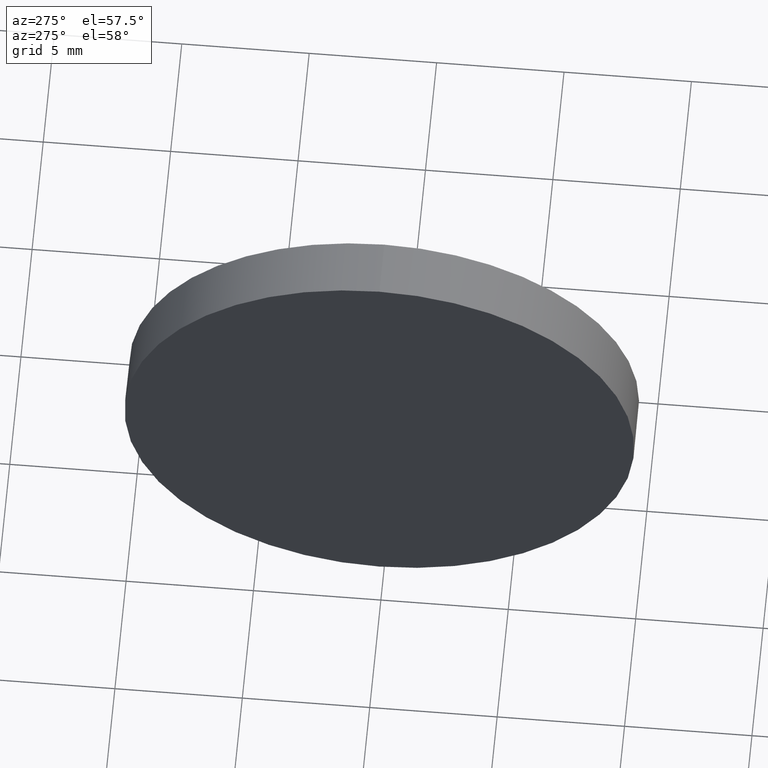
[diagram: clean part render]
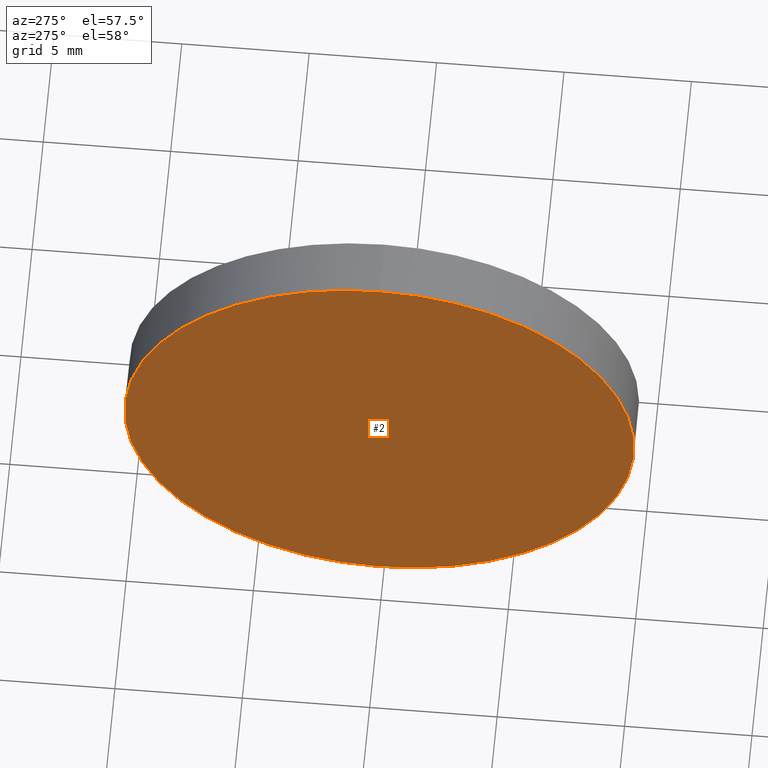
[diagram: same view with one face highlighted and labeled with its STEP entity id]
A machine part, auxiliary view. The second image highlights one B-rep face of the part: STEP entity #2.
In plain terms, the highlighted planar face has unit normal (1, 0, 0).
Its self-contained STEP definition (entity closure, byte-faithful):
#2 = ADVANCED_FACE ( 'NONE', ( #48 ), #145, .F. ) ;
#6 = CIRCLE ( 'NONE', #86, 9.999999999999980500 ) ;
#17 = CARTESIAN_POINT ( 'NONE',  ( 551.2665742364943100, 125.1720671761335200, 0.0000000000000000000 ) ) ;
#18 = VERTEX_POINT ( 'NONE', #162 ) ;
#48 = FACE_OUTER_BOUND ( 'NONE', #129, .T. ) ;
#51 = DIRECTION ( 'NONE',  ( 1.000000000000000000, 0.0000000000000000000, 0.0000000000000000000 ) ) ;
#56 = ORIENTED_EDGE ( 'NONE', *, *, #72, .T. ) ;
#63 = CIRCLE ( 'NONE', #118, 9.999999999999980500 ) ;
#65 = DIRECTION ( 'NONE',  ( -1.000000000000000000, -0.0000000000000000000, -0.0000000000000000000 ) ) ;
#69 = CARTESIAN_POINT ( 'NONE',  ( 551.2665742364943100, 125.1720671761335200, -9.999999999999980500 ) ) ;
#72 = EDGE_CURVE ( 'NONE', #138, #18, #63, .T. ) ;
#76 = CARTESIAN_POINT ( 'NONE',  ( 551.2665742364943100, 125.1720671761335200, 0.0000000000000000000 ) ) ;
#85 = EDGE_CURVE ( 'NONE', #18, #138, #6, .T. ) ;
#86 = AXIS2_PLACEMENT_3D ( 'NONE', #136, #65, #122 ) ;
#87 = ORIENTED_EDGE ( 'NONE', *, *, #85, .T. ) ;
#113 = DIRECTION ( 'NONE',  ( 0.0000000000000000000, 0.0000000000000000000, -1.000000000000000000 ) ) ;
#118 = AXIS2_PLACEMENT_3D ( 'NONE', #17, #160, #175 ) ;
#122 = DIRECTION ( 'NONE',  ( 0.0000000000000000000, 0.0000000000000000000, 1.000000000000000000 ) ) ;
#126 = AXIS2_PLACEMENT_3D ( 'NONE', #76, #51, #113 ) ;
#129 = EDGE_LOOP ( 'NONE', ( #87, #56 ) ) ;
#136 = CARTESIAN_POINT ( 'NONE',  ( 551.2665742364943100, 125.1720671761335200, 0.0000000000000000000 ) ) ;
#138 = VERTEX_POINT ( 'NONE', #69 ) ;
#145 = PLANE ( 'NONE',  #126 ) ;
#160 = DIRECTION ( 'NONE',  ( -1.000000000000000000, -0.0000000000000000000, -0.0000000000000000000 ) ) ;
#162 = CARTESIAN_POINT ( 'NONE',  ( 551.2665742364943100, 125.1720671761335200, 9.999999999999980500 ) ) ;
#175 = DIRECTION ( 'NONE',  ( 0.0000000000000000000, 0.0000000000000000000, 1.000000000000000000 ) ) ;